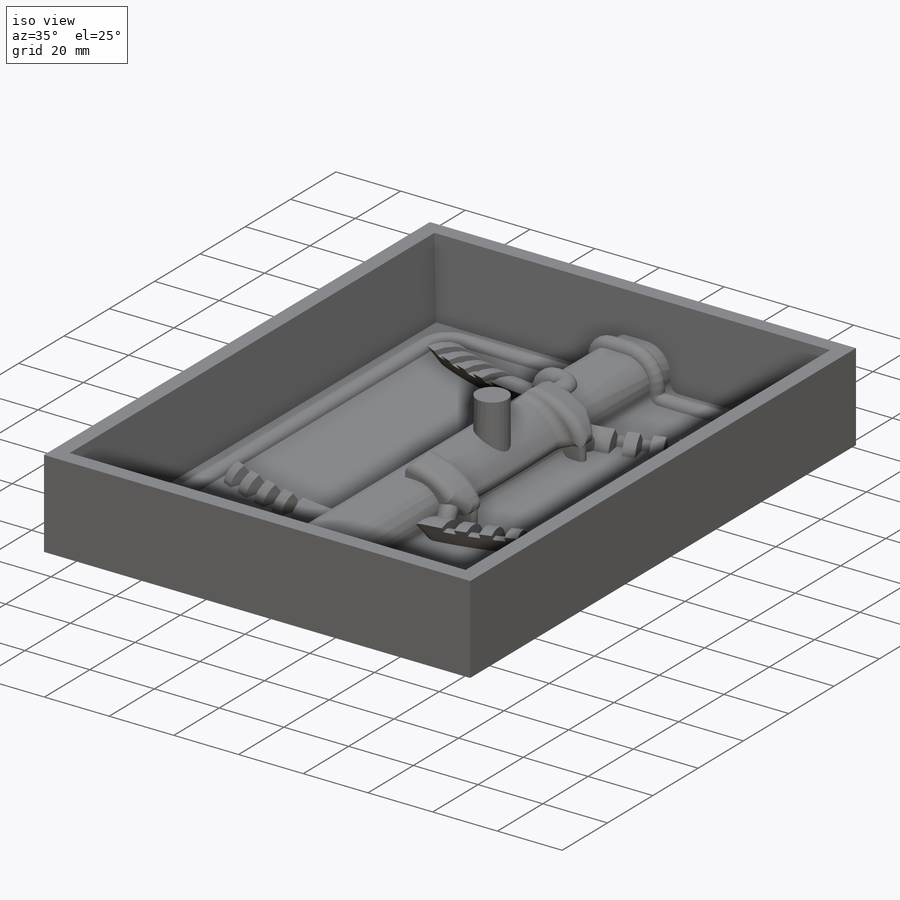
[diagram: iso view]
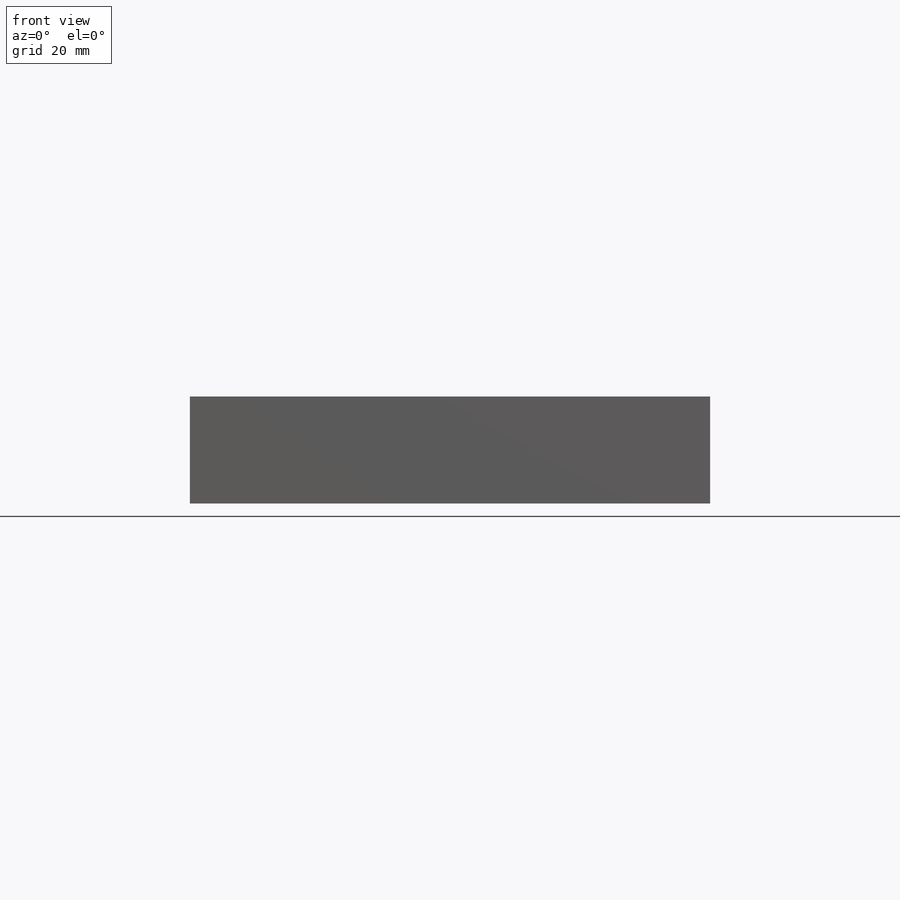
[diagram: front view]
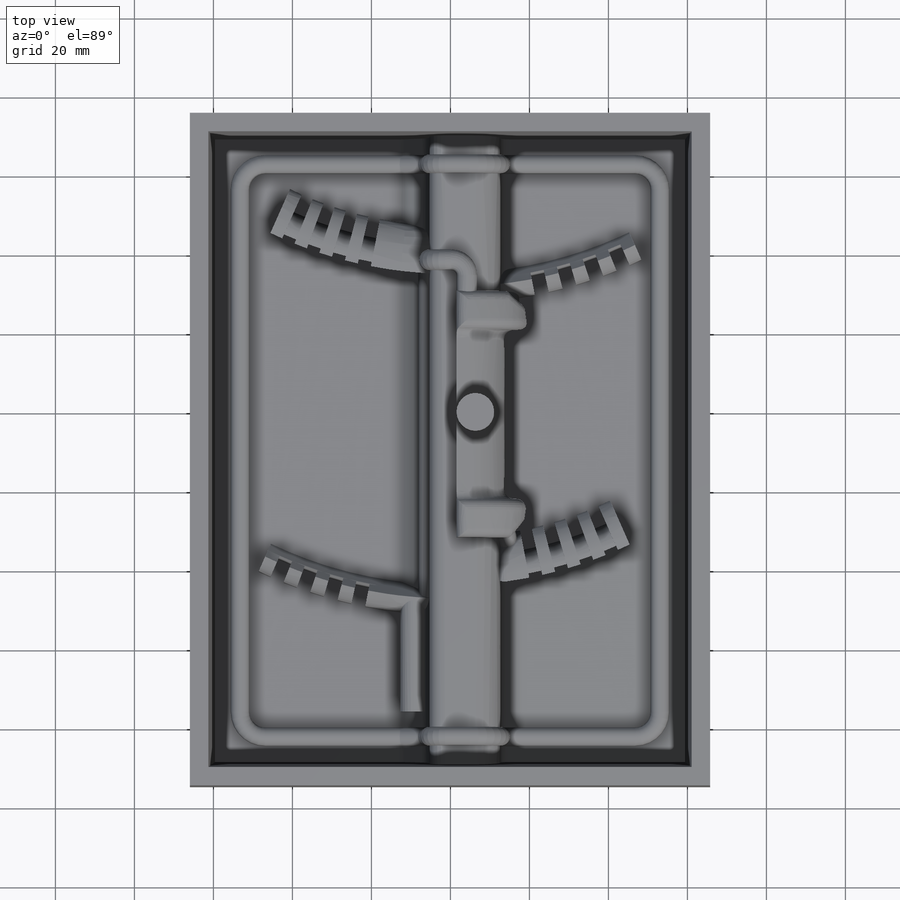
[diagram: top view]
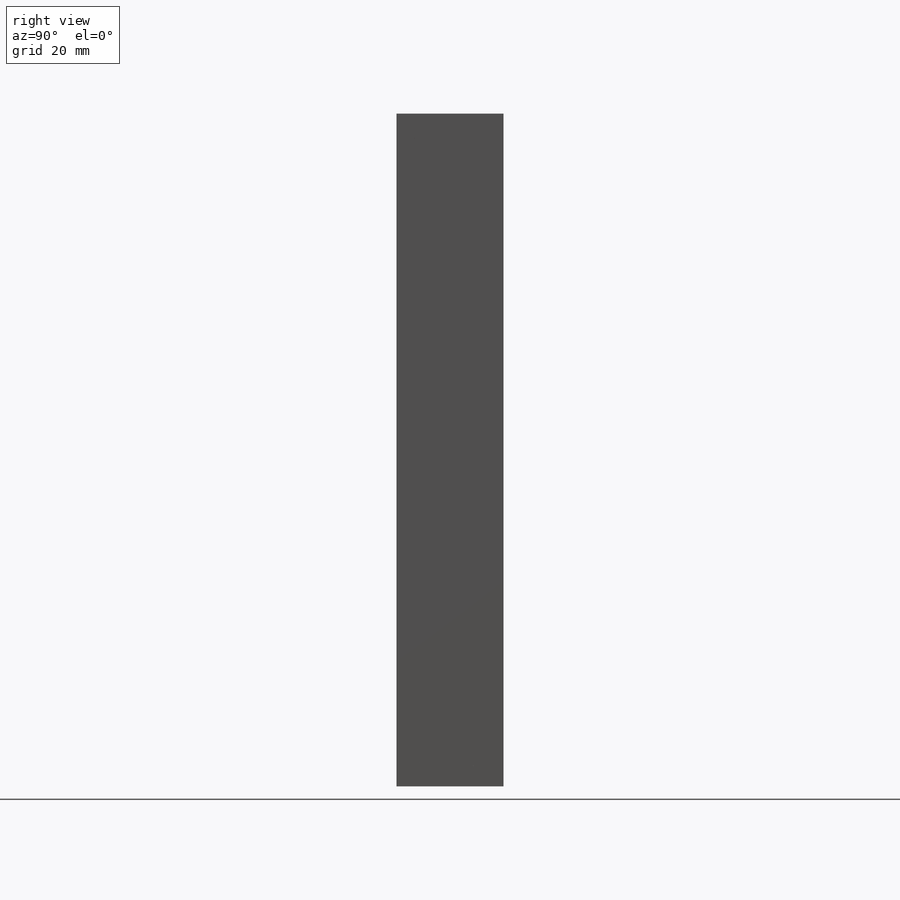
[diagram: right view]
SOLIDWORKS PART (.sldprt)
format: sldprt  version: not decoded by parser v0  size: 4,327,424 bytes
history: native  units: mm
features: sketch x11, extrude x7, delete_body x3, plane x3, boolean_combine x3, sweep x2, material x1, move_body x1, surface_op x1, cut_extrude x1 + 4 further entries (+18 scaffold rows collapsed; 3 parser-record rows omitted)
feature tree (58):
  scaffold x18  (default folders/planes/origin — collapsed)
  material  "Material <not specified>"
  "makerbot_internals"
  parser-record x3  (decoder bookkeeping rows leaked as tree rows — omitted from the tree; the rows remain in map.json)
  move_body  "Body-Move/Copy2"
  delete_body  "Body-Delete1"
  sketch  "Sketch2"  dims[c1.D1=25.4mm c1.D2=25.4mm c1.D3=12.7mm c1.D4=12.7mm c2.D2=12.7mm c2.D1=12.7mm c2.D4=12.7mm c3.D2=12.7mm c3.D3=12.7mm]
  extrude  "Boss-Extrude1"  [1 undecoded]
  sketch  "Sketch3"  dims[c1.D1=2.54mm c1.D3=2.54mm c1.D2=1.27mm c2.D3=~50.358238mm]
  surface_op  "Surface-Extrude1"
  plane  "Plane1"  Offset=50.8mm
  sketch  "Sketch5"  dims[D5=6.35mm D1=6.35mm D2=6.35mm D3=6.35mm D4=6.35mm]
  sketch  "Sketch6"  dims[D1=4.7625mm]
  sweep  "Sweep1"
  sketch  "Sketch10"  dims[c1.D1=2.54mm c1.D2=2.54mm c1.D3=2.54mm c1.D4=2.54mm c1.D5=2.54mm c2.D2=0.254mm c2.D3=0.254mm]
  extrude  "Boss-Extrude11"  [1 undecoded]
  "SurfaceCut2"
  delete_body  "Body-Delete2"
  sketch  "Sketch7"  dims[D1=6.35mm]
  extrude  "Boss-Extrude5"  [1 undecoded]
  extrude  "Boss-Extrude7"  [1 undecoded]
  sketch  "Sketch7<3>"  dims[c1.D1=6.35mm c2.D1=4.0deg]
  sketch  "Sketch8"  dims[D1=9.525mm]
  extrude  "Boss-Extrude8"  [1 undecoded]
  delete_body  "Body-Delete4"
  boolean_combine  "Combine1"
  cut_extrude  "Cut-Extrude2"  [1 undecoded]
  sketch  "Sketch2<5>"  dims[D1=6.35mm]
  sketch  "Sketch9"  dims[D1=0.0mm D2=6.35mm]
  extrude  "Boss-Extrude9"  [1 undecoded]
  extrude  "Boss-Extrude10"  [1 undecoded]
  sketch  "Sketch9<2>"  dims[D1=6.35mm]
  sweep  "Draft2"
  boolean_combine  "Combine2"
  boolean_combine  "Combine5"
  plane  "Plane2"  Offset=3.175mm
  "SurfaceCut3"
  plane  "Plane3"  Offset=3.175mm
  "SurfaceCut4"
decode coverage: 11 of 29 modeling features carry decoded parameters; 4 rows unclassified (native names shown)
note: ~ marks probable driven/reference dimensions
note: 8 parameter values undecoded
summary: no parameter record found for 8 features
note: suppression state not decoded; provenance and decode notes live in map.json
